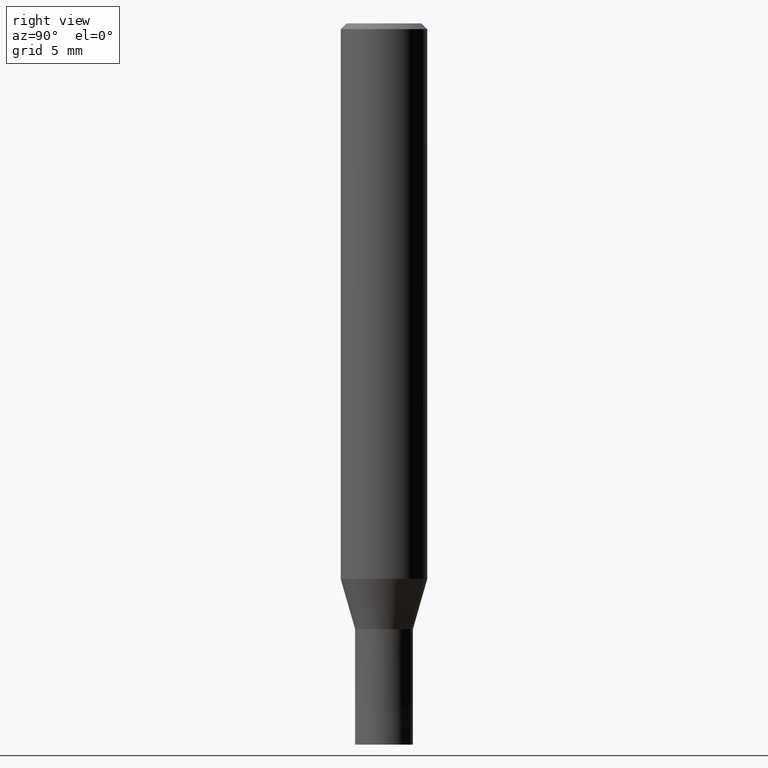
[diagram: clean part render]
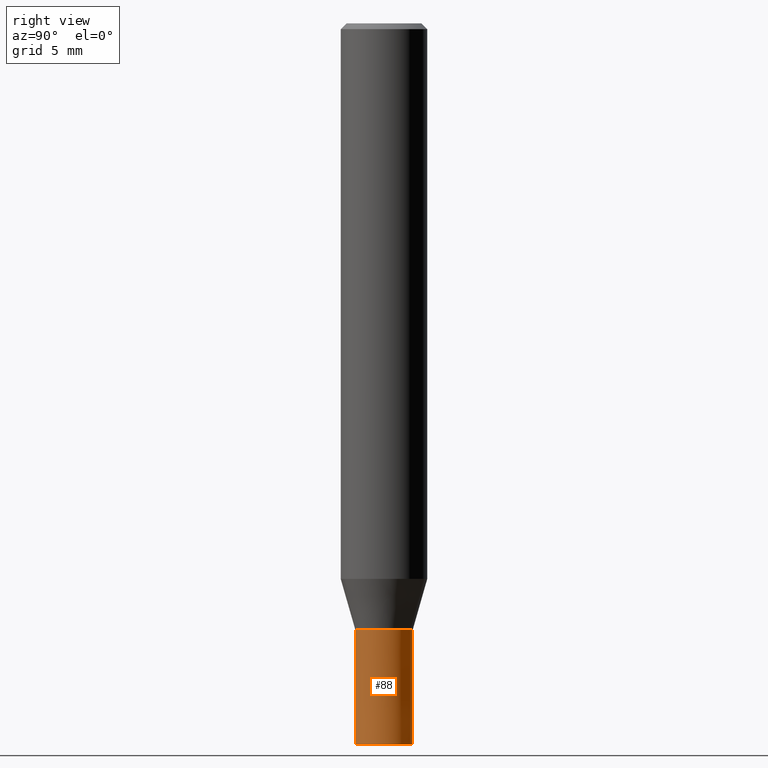
[diagram: same view with one face highlighted and labeled with its STEP entity id]
A machine part, right view. The second image highlights one B-rep face of the part: STEP entity #88.
In plain terms, the highlighted conical surface has half-angle 0.001 deg.
Its self-contained STEP definition (entity closure, byte-faithful):
#84=VERTEX_POINT('',#205);
#88=ADVANCED_FACE('',(#209),#210,.T.);
#110=EDGE_CURVE('',#84,#156,#233,.T.);
#130=EDGE_CURVE('',#178,#180,#258,.T.);
#134=EDGE_CURVE('',#156,#180,#262,.T.);
#144=EDGE_CURVE('',#178,#84,#274,.T.);
#156=VERTEX_POINT('',#286);
#178=VERTEX_POINT('',#313);
#180=VERTEX_POINT('',#315);
#205=CARTESIAN_POINT('',(0.0,2.0,-50.0));
#209=FACE_OUTER_BOUND('',#335,.T.);
#210=CONICAL_SURFACE('',#336,1.99995,1.24999999993476E-005);
#233=CIRCLE('',#365,2.0);
#258=CIRCLE('',#394,1.9999);
#262=LINE('',#401,#402);
#274=LINE('',#418,#419);
#286=CARTESIAN_POINT('',(2.44921270764475E-016,-2.0,-50.0));
#313=CARTESIAN_POINT('',(0.0,1.9999,-42.0));
#315=CARTESIAN_POINT('',(2.44909024700937E-016,-1.9999,-42.0));
#335=EDGE_LOOP('',(#478,#479,#480,#481));
#336=AXIS2_PLACEMENT_3D('',#482,#483,#484);
#365=AXIS2_PLACEMENT_3D('',#505,#506,#507);
#394=AXIS2_PLACEMENT_3D('',#544,#545,#546);
#401=CARTESIAN_POINT('',(2.44915147732706E-016,-1.99995,-46.0));
#402=VECTOR('',#548,1.0);
#418=CARTESIAN_POINT('',(-2.44915147732706E-016,1.99995,-46.0));
#419=VECTOR('',#569,1.0);
#478=ORIENTED_EDGE('',*,*,#144,.F.);
#479=ORIENTED_EDGE('',*,*,#130,.T.);
#480=ORIENTED_EDGE('',*,*,#134,.F.);
#481=ORIENTED_EDGE('',*,*,#110,.F.);
#482=CARTESIAN_POINT('',(0.0,0.0,-46.0));
#483=DIRECTION('',(0.0,-0.0,-1.0));
#484=DIRECTION('',(0.0,1.0,0.0));
#505=CARTESIAN_POINT('',(0.0,0.0,-50.0));
#506=DIRECTION('',(0.0,0.0,-1.0));
#507=DIRECTION('',(0.0,1.0,0.0));
#544=CARTESIAN_POINT('',(0.0,0.0,-42.0));
#545=DIRECTION('',(0.0,0.0,-1.0));
#546=DIRECTION('',(0.0,1.0,0.0));
#548=DIRECTION('',(-1.53075794215821E-021,1.24999999990221E-005,0.999999999921875));
#569=DIRECTION('',(-1.53075794215821E-021,1.24999999990221E-005,-0.999999999921875));